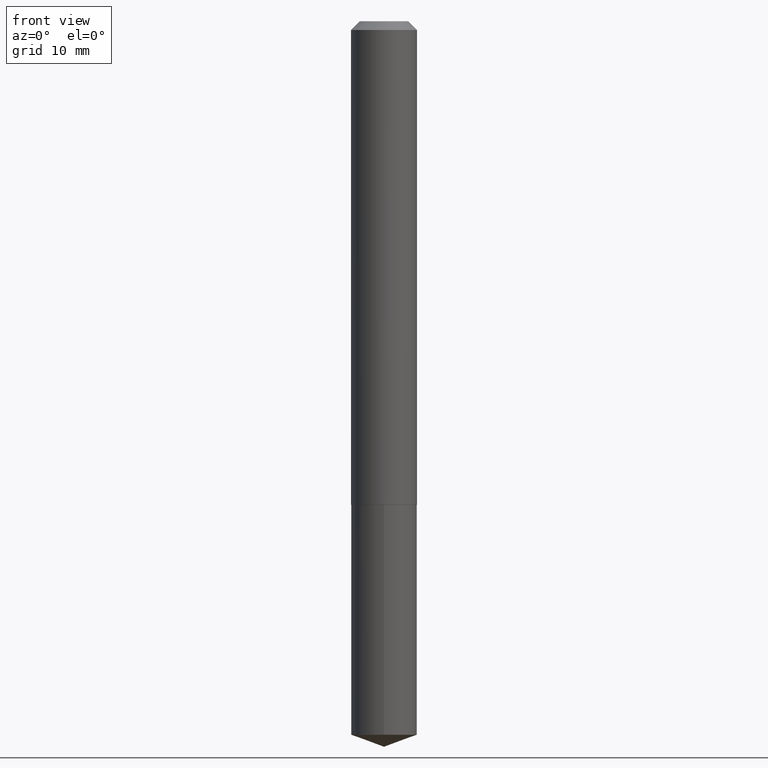
[diagram: clean part render]
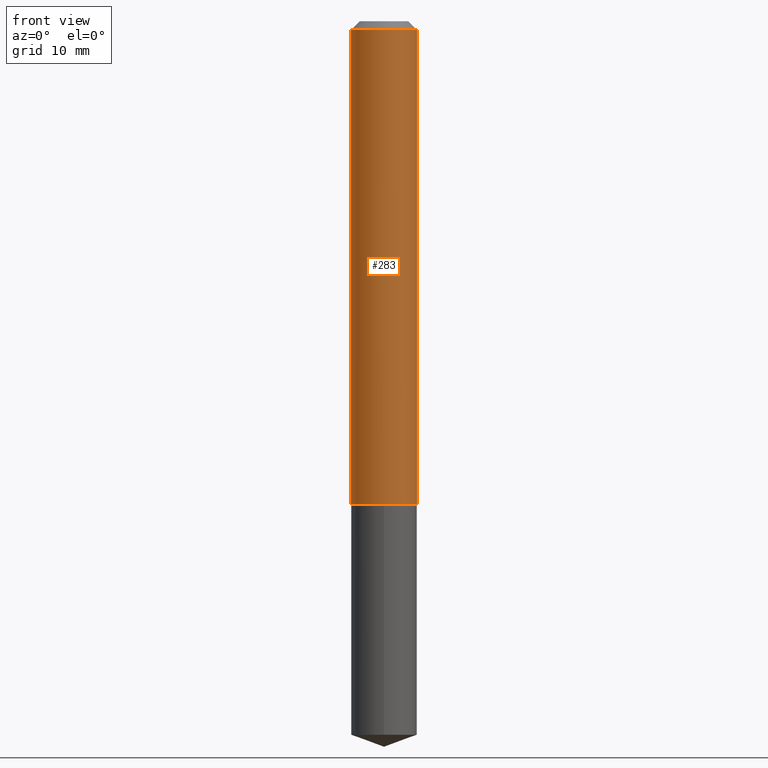
[diagram: same view with one face highlighted and labeled with its STEP entity id]
A machine part, front view. The second image highlights one B-rep face of the part: STEP entity #283.
In plain terms, the highlighted cylindrical surface (edge-blend (fillet) strip) has radius 2.9997 mm, axis along (-0, 0, 1).
Its self-contained STEP definition (entity closure, byte-faithful):
#4 = DIRECTION ( 'NONE',  ( -2.445468806185136597E-29, 3.491481338843145583E-15, 1.000000000000000000 ) ) ;
#8 = DIRECTION ( 'NONE',  ( -2.445468806185136877E-29, 3.491481338843145188E-15, 1.000000000000000000 ) ) ;
#22 = EDGE_LOOP ( 'NONE', ( #109, #388, #381, #120 ) ) ;
#27 = EDGE_CURVE ( 'NONE', #78, #241, #337, .T. ) ;
#31 = DIRECTION ( 'NONE',  ( 1.000000000000000000, -6.982962677686266711E-15, 0.000000000000000000 ) ) ;
#44 = EDGE_CURVE ( 'NONE', #65, #78, #354, .T. ) ;
#64 = AXIS2_PLACEMENT_3D ( 'NONE', #73, #108, #358 ) ;
#65 = VERTEX_POINT ( 'NONE', #387 ) ;
#68 = DIRECTION ( 'NONE',  ( -2.445468806185136877E-29, 3.491481338843145188E-15, 1.000000000000000000 ) ) ;
#73 = CARTESIAN_POINT ( 'NONE',  ( 0.000000000000000000, 0.000000000000000000, 0.000000000000000000 ) ) ;
#74 = AXIS2_PLACEMENT_3D ( 'NONE', #169, #4, #31 ) ;
#78 = VERTEX_POINT ( 'NONE', #353 ) ;
#108 = DIRECTION ( 'NONE',  ( -2.445468806185136597E-29, 3.491481338843145583E-15, 1.000000000000000000 ) ) ;
#109 = ORIENTED_EDGE ( 'NONE', *, *, #218, .F. ) ;
#120 = ORIENTED_EDGE ( 'NONE', *, *, #384, .F. ) ;
#125 = VERTEX_POINT ( 'NONE', #132 ) ;
#132 = CARTESIAN_POINT ( 'NONE',  ( -0.1180999999999999966, -2.238502542224082018E-15, -0.03125000000000020817 ) ) ;
#144 = CARTESIAN_POINT ( 'NONE',  ( 0.1181000000000001077, -8.246878922347488542E-16, 5.758764772215005345E-30 ) ) ;
#149 = DIRECTION ( 'NONE',  ( 1.000000000000000000, -6.982962677686269077E-15, 0.000000000000000000 ) ) ;
#152 = VECTOR ( 'NONE', #8, 39.37007874015748143 ) ;
#165 = LINE ( 'NONE', #222, #259 ) ;
#169 = CARTESIAN_POINT ( 'NONE',  ( 7.642090019328602662E-31, -1.091087918388490267E-16, -0.03125000000000020817 ) ) ;
#178 = AXIS2_PLACEMENT_3D ( 'NONE', #314, #180, #149 ) ;
#180 = DIRECTION ( 'NONE',  ( -2.445468806185136597E-29, 3.491481338843145583E-15, 1.000000000000000000 ) ) ;
#208 = CIRCLE ( 'NONE', #74, 0.1180999999999999966 ) ;
#218 = EDGE_CURVE ( 'NONE', #65, #125, #165, .T. ) ;
#221 = FACE_OUTER_BOUND ( 'NONE', #22, .T. ) ;
#222 = CARTESIAN_POINT ( 'NONE',  ( -0.1181000000000001077, 8.391509709326790846E-16, -5.809262341591049389E-30 ) ) ;
#241 = VERTEX_POINT ( 'NONE', #269 ) ;
#259 = VECTOR ( 'NONE', #68, 39.37007874015748143 ) ;
#269 = CARTESIAN_POINT ( 'NONE',  ( 0.1180999999999999966, -9.337966840735971660E-16, -0.03125000000000020817 ) ) ;
#283 = ADVANCED_FACE ( 'NONE', ( #221 ), #359, .T. ) ;
#314 = CARTESIAN_POINT ( 'NONE',  ( 4.234818331670800246E-29, -6.046198234474674485E-15, -1.731699999999999795 ) ) ;
#337 = LINE ( 'NONE', #144, #152 ) ;
#353 = CARTESIAN_POINT ( 'NONE',  ( 0.1181000000000001909, -6.870886126709424325E-15, -1.731699999999999795 ) ) ;
#354 = CIRCLE ( 'NONE', #178, 0.1181000000000001909 ) ;
#358 = DIRECTION ( 'NONE',  ( 1.000000000000000000, -6.982962677686266711E-15, 4.876176775795935793E-29 ) ) ;
#359 = CYLINDRICAL_SURFACE ( 'NONE', #64, 0.1181000000000001077 ) ;
#381 = ORIENTED_EDGE ( 'NONE', *, *, #27, .T. ) ;
#384 = EDGE_CURVE ( 'NONE', #125, #241, #208, .T. ) ;
#387 = CARTESIAN_POINT ( 'NONE',  ( -0.1181000000000001909, -5.207047263541994710E-15, -1.731699999999999795 ) ) ;
#388 = ORIENTED_EDGE ( 'NONE', *, *, #44, .T. ) ;